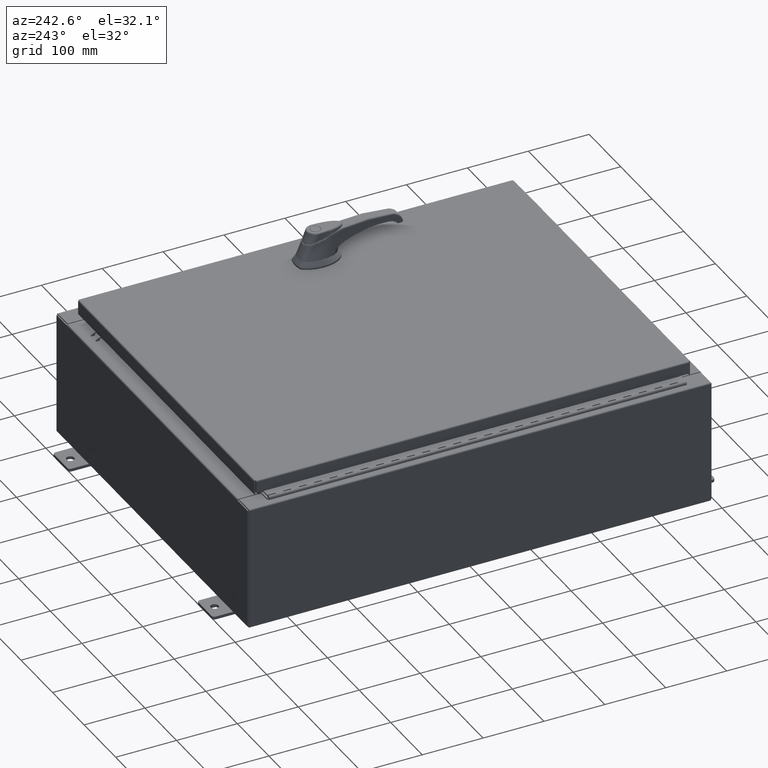
[diagram: clean part render]
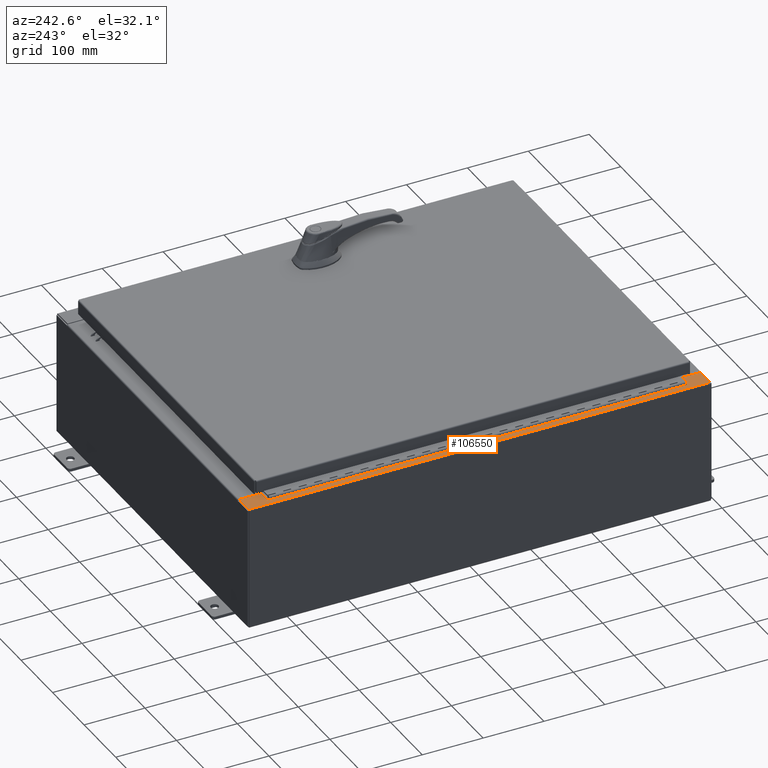
[diagram: same view with one face highlighted and labeled with its STEP entity id]
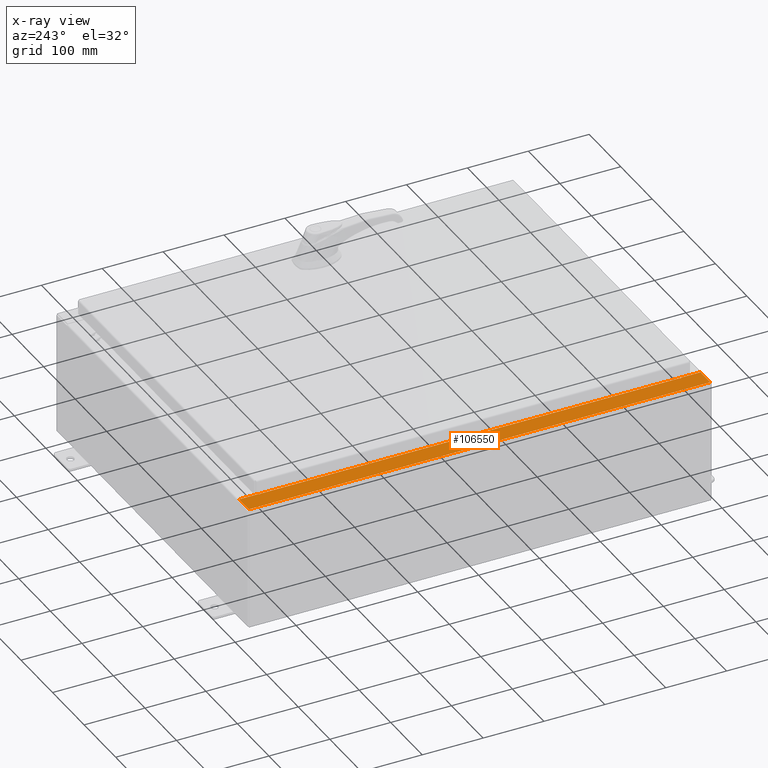
[diagram: x-ray of the same camera — body ghosted, the highlighted face saturated]
A machine part, auxiliary view. The second image highlights one B-rep face of the part: STEP entity #106550.
The next image is the same camera in x-ray: the body ghosted, the highlighted face saturated — about 0% of this face is hidden behind the body in this view.
In plain terms, the highlighted planar face has unit normal (0, 0, -1).
Its self-contained STEP definition (entity closure, byte-faithful):
#1701 = ORIENTED_EDGE ( 'NONE', *, *, #108785, .F. ) ;
#2004 = PLANE ( 'NONE',  #88774 ) ;
#4263 = ORIENTED_EDGE ( 'NONE', *, *, #28848, .F. ) ;
#4371 = CARTESIAN_POINT ( 'NONE',  ( -11.91230000000003400, 14.92530000000000000, 7.925300000000000000 ) ) ;
#11063 = ORIENTED_EDGE ( 'NONE', *, *, #14336, .F. ) ;
#11178 = VERTEX_POINT ( 'NONE', #86646 ) ;
#11816 = AXIS2_PLACEMENT_3D ( 'NONE', #81382, #27273, #90479 ) ;
#12079 = VECTOR ( 'NONE', #68845, 39.37007874015748100 ) ;
#14336 = EDGE_CURVE ( 'NONE', #102500, #51756, #112465, .T. ) ;
#15960 = VECTOR ( 'NONE', #50296, 39.37007874015748100 ) ;
#17520 = EDGE_CURVE ( 'NONE', #51756, #11178, #95277, .T. ) ;
#17876 = LINE ( 'NONE', #47150, #39108 ) ;
#18567 = CARTESIAN_POINT ( 'NONE',  ( -10.69970000000003400, 13.63109999999999600, 7.925300000000009800 ) ) ;
#19459 = CARTESIAN_POINT ( 'NONE',  ( -10.69970000000003400, -14.92530000000000000, 7.925300000000008900 ) ) ;
#19970 = CARTESIAN_POINT ( 'NONE',  ( -10.69970000000003400, 13.63109999999999600, 7.925300000000008900 ) ) ;
#20287 = CARTESIAN_POINT ( 'NONE',  ( -5.679009539018295300E-014, 0.0000000000000000000, 7.925300000000085300 ) ) ;
#20964 = VERTEX_POINT ( 'NONE', #19459 ) ;
#21780 = DIRECTION ( 'NONE',  ( 0.0000000000000000000, 1.000000000000000000, 0.0000000000000000000 ) ) ;
#21919 = VECTOR ( 'NONE', #55008, 39.37007874015748100 ) ;
#23366 = CARTESIAN_POINT ( 'NONE',  ( -11.91230000000003400, -14.92530000000000000, 7.925300000000000000 ) ) ;
#23408 = CARTESIAN_POINT ( 'NONE',  ( -5.679009539018295300E-014, -14.92530000000000000, 7.925300000000085300 ) ) ;
#23915 = VECTOR ( 'NONE', #34623, 39.37007874015748100 ) ;
#26039 = VECTOR ( 'NONE', #60759, 39.37007874015748100 ) ;
#27273 = DIRECTION ( 'NONE',  ( -7.132762385546384700E-015, -0.0000000000000000000, 1.000000000000000000 ) ) ;
#27546 = AXIS2_PLACEMENT_3D ( 'NONE', #37923, #101118, #47011 ) ;
#28848 = EDGE_CURVE ( 'NONE', #11178, #36026, #96020, .T. ) ;
#29428 = DIRECTION ( 'NONE',  ( -1.000000000000000000, 0.0000000000000000000, -7.132762385546384700E-015 ) ) ;
#31485 = ORIENTED_EDGE ( 'NONE', *, *, #114377, .F. ) ;
#32571 = VERTEX_POINT ( 'NONE', #64490 ) ;
#33761 = CARTESIAN_POINT ( 'NONE',  ( -10.75005000000003400, 13.59374999999999800, 7.925300000000010700 ) ) ;
#34623 = DIRECTION ( 'NONE',  ( -1.000000000000000000, 0.0000000000000000000, 0.0000000000000000000 ) ) ;
#36026 = VERTEX_POINT ( 'NONE', #48885 ) ;
#36776 = CARTESIAN_POINT ( 'NONE',  ( -10.75005000000003400, 13.59374999999999800, 7.925300000000008900 ) ) ;
#37568 = VECTOR ( 'NONE', #87898, 39.37007874015748100 ) ;
#37865 = ORIENTED_EDGE ( 'NONE', *, *, #73647, .T. ) ;
#37923 = CARTESIAN_POINT ( 'NONE',  ( -10.75005000000003400, -13.61242500000000000, 7.925300000000010700 ) ) ;
#39108 = VECTOR ( 'NONE', #74411, 39.37007874015748100 ) ;
#42165 = CARTESIAN_POINT ( 'NONE',  ( -10.75005000000003400, -13.63109999999999800, 7.925300000000008900 ) ) ;
#47011 = DIRECTION ( 'NONE',  ( 1.000000000000000000, 0.0000000000000000000, 0.0000000000000000000 ) ) ;
#47150 = CARTESIAN_POINT ( 'NONE',  ( -5.679009539018295300E-014, 14.92530000000000000, 7.925300000000085300 ) ) ;
#48885 = CARTESIAN_POINT ( 'NONE',  ( -10.75005000000003400, -13.59375000000000000, 7.925300000000008900 ) ) ;
#50296 = DIRECTION ( 'NONE',  ( 1.000000000000000000, -0.0000000000000000000, 7.132762385546384700E-015 ) ) ;
#50925 = VECTOR ( 'NONE', #21780, 39.37007874015748100 ) ;
#51238 = VERTEX_POINT ( 'NONE', #107553 ) ;
#51432 = CARTESIAN_POINT ( 'NONE',  ( -10.69970000000003400, 0.0000000000000000000, 7.925300000000008900 ) ) ;
#51756 = VERTEX_POINT ( 'NONE', #98326 ) ;
#53072 = ORIENTED_EDGE ( 'NONE', *, *, #93195, .T. ) ;
#54015 = CARTESIAN_POINT ( 'NONE',  ( -10.69970000000003400, 14.92530000000000000, 7.925300000000008900 ) ) ;
#54518 = LINE ( 'NONE', #108734, #21919 ) ;
#55008 = DIRECTION ( 'NONE',  ( 1.000000000000000000, 0.0000000000000000000, -2.170286390200049500E-014 ) ) ;
#55493 = EDGE_CURVE ( 'NONE', #67435, #97489, #17876, .T. ) ;
#56354 = LINE ( 'NONE', #94796, #101545 ) ;
#56618 = LINE ( 'NONE', #66836, #50925 ) ;
#56810 = VERTEX_POINT ( 'NONE', #23366 ) ;
#59118 = ORIENTED_EDGE ( 'NONE', *, *, #74398, .F. ) ;
#60759 = DIRECTION ( 'NONE',  ( -0.0000000000000000000, -1.000000000000000000, -0.0000000000000000000 ) ) ;
#63258 = EDGE_CURVE ( 'NONE', #36026, #117084, #104355, .T. ) ;
#63449 = EDGE_LOOP ( 'NONE', ( #1701, #53072, #74357, #85936, #71548, #37865, #59118, #97795, #4263, #67648, #11063, #31485 ) ) ;
#63649 = VERTEX_POINT ( 'NONE', #19970 ) ;
#64490 = CARTESIAN_POINT ( 'NONE',  ( -10.69970000000003400, -13.63110000000000200, 7.925300000000008900 ) ) ;
#66836 = CARTESIAN_POINT ( 'NONE',  ( -10.69970000000003400, 0.0000000000000000000, 7.925300000000008900 ) ) ;
#67435 = VERTEX_POINT ( 'NONE', #54015 ) ;
#67648 = ORIENTED_EDGE ( 'NONE', *, *, #17520, .F. ) ;
#68845 = DIRECTION ( 'NONE',  ( 0.0000000000000000000, 1.000000000000000000, 0.0000000000000000000 ) ) ;
#70303 = LINE ( 'NONE', #18567, #115543 ) ;
#70575 = CARTESIAN_POINT ( 'NONE',  ( -10.71270000000003500, -13.59375000000000000, 7.925300000000010700 ) ) ;
#71548 = ORIENTED_EDGE ( 'NONE', *, *, #97508, .T. ) ;
#73647 = EDGE_CURVE ( 'NONE', #20964, #32571, #56618, .T. ) ;
#74357 = ORIENTED_EDGE ( 'NONE', *, *, #55493, .T. ) ;
#74398 = EDGE_CURVE ( 'NONE', #117084, #32571, #54518, .T. ) ;
#74411 = DIRECTION ( 'NONE',  ( -1.000000000000000000, 0.0000000000000000000, -7.132762385546384700E-015 ) ) ;
#74788 = FACE_OUTER_BOUND ( 'NONE', #63449, .T. ) ;
#81382 = CARTESIAN_POINT ( 'NONE',  ( -10.75005000000003400, 13.61242499999999600, 7.925300000000010700 ) ) ;
#81831 = DIRECTION ( 'NONE',  ( -1.000000000000000000, 0.0000000000000000000, 2.170286390200049500E-014 ) ) ;
#83538 = DIRECTION ( 'NONE',  ( 7.132762385546384700E-015, 0.0000000000000000000, -1.000000000000000000 ) ) ;
#85734 = DIRECTION ( 'NONE',  ( -0.0000000000000000000, 1.000000000000000000, -0.0000000000000000000 ) ) ;
#85936 = ORIENTED_EDGE ( 'NONE', *, *, #107343, .F. ) ;
#86646 = CARTESIAN_POINT ( 'NONE',  ( -10.71270000000003500, -13.59375000000000000, 7.925300000000010700 ) ) ;
#87898 = DIRECTION ( 'NONE',  ( 1.000000000000000000, 0.0000000000000000000, 0.0000000000000000000 ) ) ;
#88774 = AXIS2_PLACEMENT_3D ( 'NONE', #20287, #83538, #29428 ) ;
#90479 = DIRECTION ( 'NONE',  ( 1.000000000000000000, 0.0000000000000000000, 0.0000000000000000000 ) ) ;
#91022 = LINE ( 'NONE', #23408, #15960 ) ;
#91682 = CIRCLE ( 'NONE', #11816, 0.01867499999999949400 ) ;
#93195 = EDGE_CURVE ( 'NONE', #63649, #67435, #105420, .T. ) ;
#94796 = CARTESIAN_POINT ( 'NONE',  ( -11.91230000000003400, 14.92530000000000000, 7.925300000000000000 ) ) ;
#95277 = LINE ( 'NONE', #116457, #26039 ) ;
#96020 = LINE ( 'NONE', #70575, #23915 ) ;
#97489 = VERTEX_POINT ( 'NONE', #4371 ) ;
#97508 = EDGE_CURVE ( 'NONE', #56810, #20964, #91022, .T. ) ;
#97795 = ORIENTED_EDGE ( 'NONE', *, *, #63258, .F. ) ;
#98326 = CARTESIAN_POINT ( 'NONE',  ( -10.71270000000003500, 13.59374999999999800, 7.925300000000010700 ) ) ;
#101118 = DIRECTION ( 'NONE',  ( -7.132762385546384700E-015, -0.0000000000000000000, 1.000000000000000000 ) ) ;
#101545 = VECTOR ( 'NONE', #85734, 39.37007874015748100 ) ;
#102500 = VERTEX_POINT ( 'NONE', #36776 ) ;
#104355 = CIRCLE ( 'NONE', #27546, 0.01867499999999949400 ) ;
#105420 = LINE ( 'NONE', #51432, #12079 ) ;
#106550 = ADVANCED_FACE ( 'NONE', ( #74788 ), #2004, .F. ) ;
#107343 = EDGE_CURVE ( 'NONE', #56810, #97489, #56354, .T. ) ;
#107553 = CARTESIAN_POINT ( 'NONE',  ( -10.75005000000003400, 13.63109999999999600, 7.925300000000008900 ) ) ;
#108734 = CARTESIAN_POINT ( 'NONE',  ( -10.75005000000003400, -13.63109999999999800, 7.925300000000010700 ) ) ;
#108785 = EDGE_CURVE ( 'NONE', #63649, #51238, #70303, .T. ) ;
#112465 = LINE ( 'NONE', #33761, #37568 ) ;
#114377 = EDGE_CURVE ( 'NONE', #51238, #102500, #91682, .T. ) ;
#115543 = VECTOR ( 'NONE', #81831, 39.37007874015748100 ) ;
#116457 = CARTESIAN_POINT ( 'NONE',  ( -10.71270000000003500, 13.59375000000000000, 7.925300000000010700 ) ) ;
#117084 = VERTEX_POINT ( 'NONE', #42165 ) ;